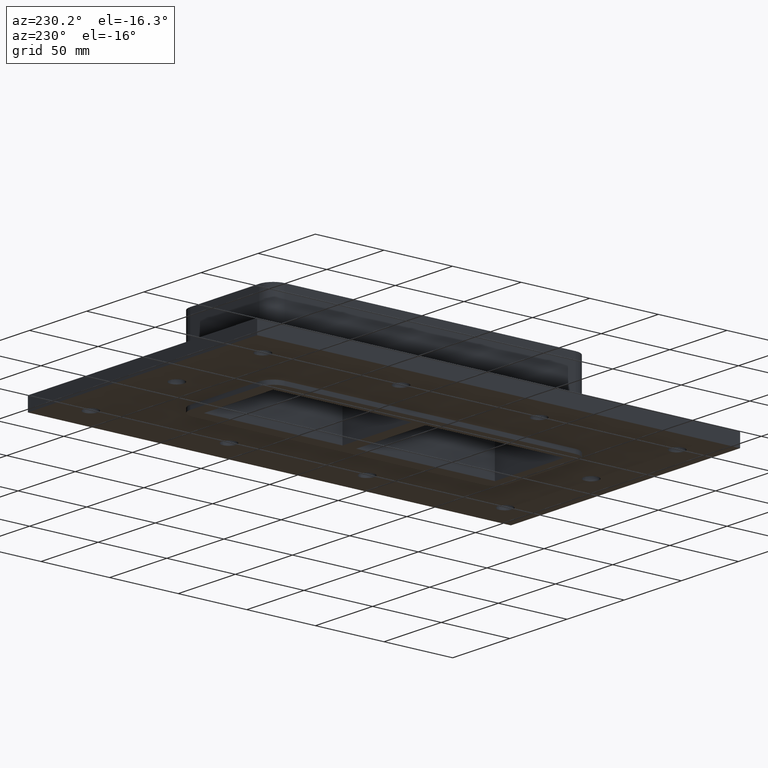
[diagram: clean part render]
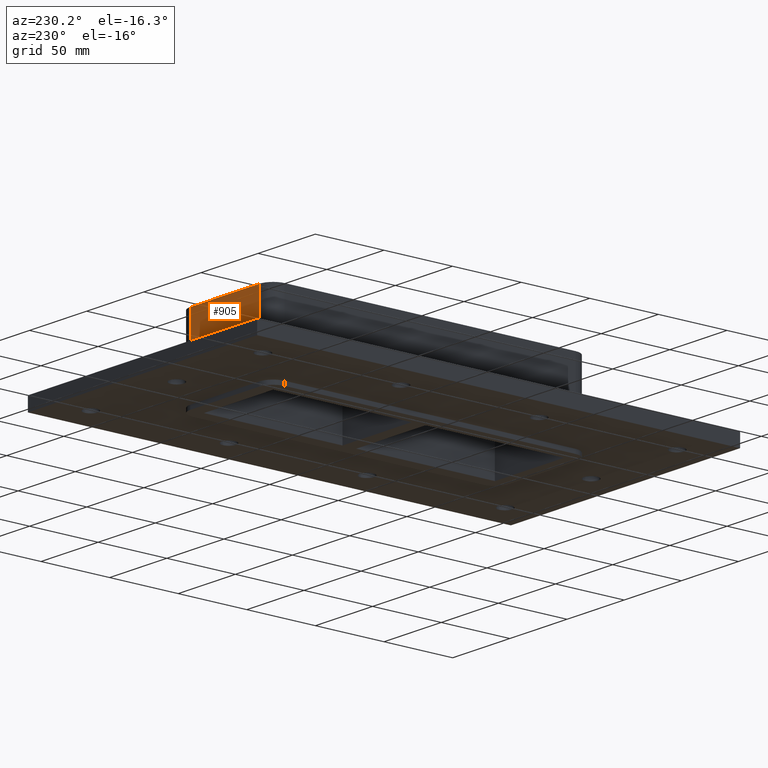
[diagram: same view with one face highlighted and labeled with its STEP entity id]
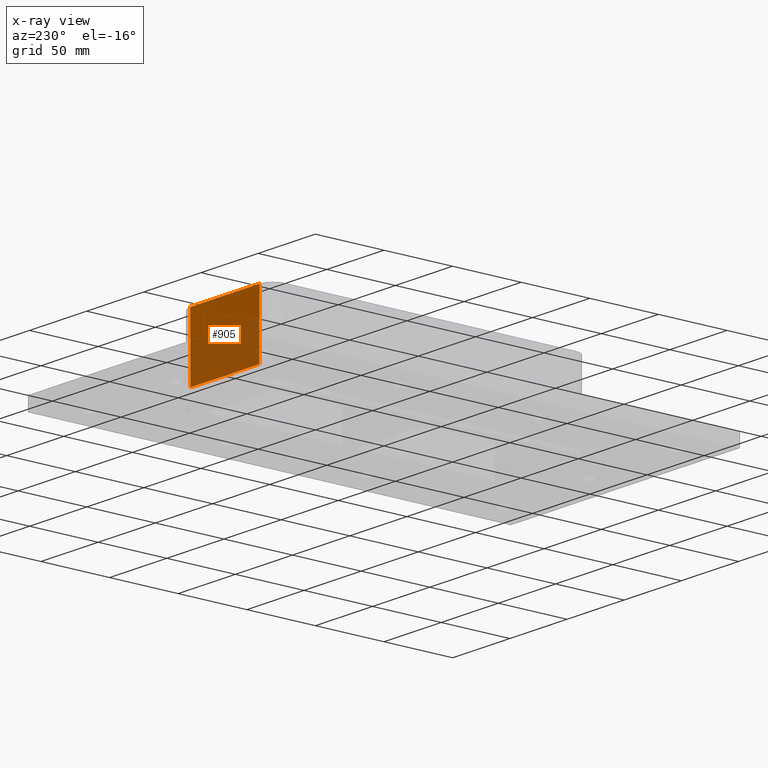
[diagram: x-ray of the same camera — body ghosted, the highlighted face saturated]
A machine part, auxiliary view. The second image highlights one B-rep face of the part: STEP entity #905.
The next image is the same camera in x-ray: the body ghosted, the highlighted face saturated — about 51% of this face is hidden behind the body in this view.
In plain terms, the highlighted planar face has unit normal (0, 1, 0).
Its self-contained STEP definition (entity closure, byte-faithful):
#515=CARTESIAN_POINT('',(30.249999999999989,116.00000000000001,-17.0));
#516=VERTEX_POINT('',#515);
#566=CARTESIAN_POINT('',(-30.250000000000018,116.00000000000001,-17.0));
#567=VERTEX_POINT('',#566);
#575=CARTESIAN_POINT('',(30.249999999999989,116.00000000000007,-17.0));
#576=DIRECTION('',(-1.0,0.0,0.0));
#577=VECTOR('',#576,60.500000000000014);
#578=LINE('',#575,#577);
#579=EDGE_CURVE('',#516,#567,#578,.T.);
#839=CARTESIAN_POINT('',(30.24999999999995,116.00000000000007,30.0));
#840=VERTEX_POINT('',#839);
#841=CARTESIAN_POINT('',(30.24999999999995,116.00000000000007,-17.0));
#842=DIRECTION('',(0.0,0.0,1.0));
#843=VECTOR('',#842,47.0);
#844=LINE('',#841,#843);
#845=EDGE_CURVE('',#516,#840,#844,.T.);
#882=CARTESIAN_POINT('',(40.24999999999995,116.00000000000007,0.0));
#883=DIRECTION('',(0.0,1.0,0.0));
#884=DIRECTION('',(-1.0,0.0,0.0));
#885=AXIS2_PLACEMENT_3D('',#882,#883,#884);
#886=PLANE('',#885);
#887=ORIENTED_EDGE('',*,*,#579,.T.);
#888=CARTESIAN_POINT('',(-30.250000000000057,116.00000000000007,30.0));
#889=VERTEX_POINT('',#888);
#890=CARTESIAN_POINT('',(-30.250000000000053,116.00000000000007,30.0));
#891=DIRECTION('',(0.0,0.0,-1.0));
#892=VECTOR('',#891,47.0);
#893=LINE('',#890,#892);
#894=EDGE_CURVE('',#889,#567,#893,.T.);
#895=ORIENTED_EDGE('',*,*,#894,.F.);
#896=CARTESIAN_POINT('',(30.24999999999995,116.00000000000007,30.0));
#897=DIRECTION('',(-1.0,0.0,0.0));
#898=VECTOR('',#897,60.5);
#899=LINE('',#896,#898);
#900=EDGE_CURVE('',#840,#889,#899,.T.);
#901=ORIENTED_EDGE('',*,*,#900,.F.);
#902=ORIENTED_EDGE('',*,*,#845,.F.);
#903=EDGE_LOOP('',(#887,#895,#901,#902));
#904=FACE_OUTER_BOUND('',#903,.T.);
#905=ADVANCED_FACE('',(#904),#886,.T.);